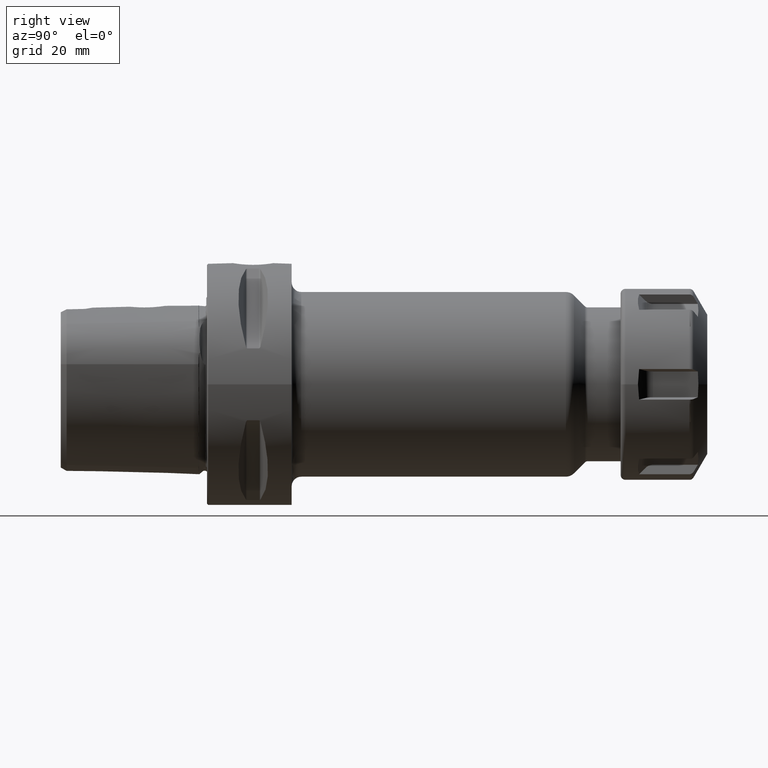
[diagram: clean part render]
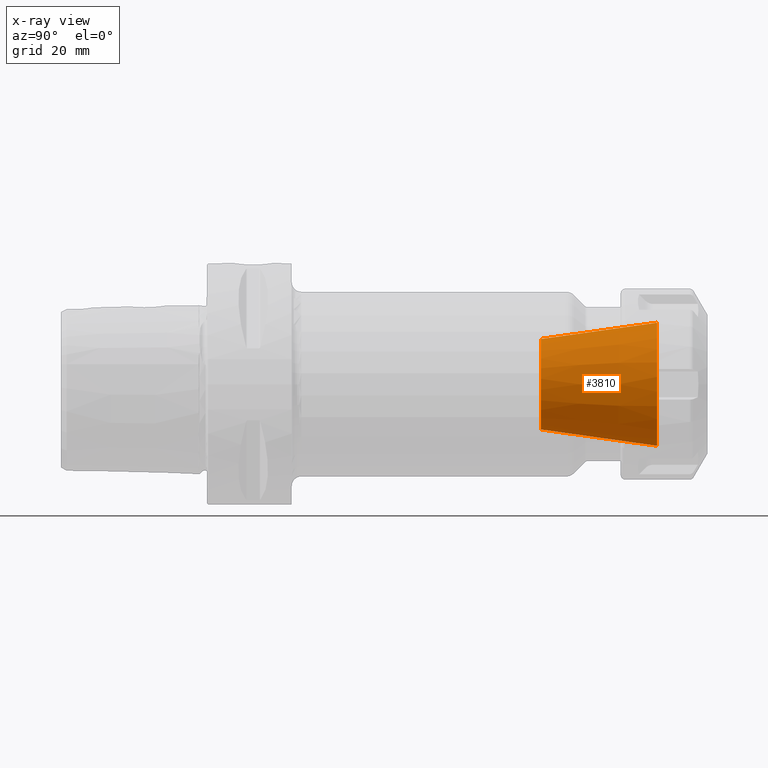
[diagram: x-ray — body ghosted, one internal face saturated and labeled with its STEP entity id]
A machine part, right view, then the same camera in x-ray: the body is ghosted and one INTERNAL B-rep face — a face not visible from any outside direction — is saturated and labeled: STEP entity #3810.
In plain terms, the highlighted conical surface has half-angle 8 deg.
Its self-contained STEP definition (entity closure, byte-faithful):
#1713=CARTESIAN_POINT('',(0.E0,1.17E2,0.E0));
#1714=DIRECTION('',(0.E0,-1.E0,0.E0));
#1715=DIRECTION('',(0.E0,0.E0,-1.E0));
#1716=AXIS2_PLACEMENT_3D('',#1713,#1714,#1715);
#1723=CARTESIAN_POINT('',(0.E0,8.675967867987E1,0.E0));
#1724=DIRECTION('',(0.E0,-1.E0,0.E0));
#1725=DIRECTION('',(0.E0,0.E0,-1.E0));
#1726=AXIS2_PLACEMENT_3D('',#1723,#1724,#1725);
#1728=DIRECTION('',(0.E0,9.902680687416E-1,-1.391731009601E-1));
#1729=VECTOR('',#1728,3.053751027089E1);
#1730=CARTESIAN_POINT('',(0.E0,8.675967867987E1,-1.175E1));
#1731=LINE('',#1730,#1729);
#1737=DIRECTION('',(0.E0,9.902680687416E-1,1.391731009601E-1));
#1738=VECTOR('',#1737,3.053751027089E1);
#1739=CARTESIAN_POINT('',(0.E0,8.675967867987E1,1.175E1));
#1740=LINE('',#1739,#1738);
#2167=CARTESIAN_POINT('',(0.E0,8.675967867987E1,-1.175E1));
#2169=VERTEX_POINT('',#2167);
#2171=CARTESIAN_POINT('',(0.E0,8.675967867987E1,1.175E1));
#2173=VERTEX_POINT('',#2171);
#2174=CARTESIAN_POINT('',(0.E0,1.17E2,-1.6E1));
#2175=CARTESIAN_POINT('',(0.E0,1.17E2,1.6E1));
#2176=VERTEX_POINT('',#2174);
#2177=VERTEX_POINT('',#2175);
#3796=CARTESIAN_POINT('',(0.E0,1.018798393399E2,0.E0));
#3797=DIRECTION('',(0.E0,1.E0,0.E0));
#3798=DIRECTION('',(0.E0,0.E0,-1.E0));
#3799=AXIS2_PLACEMENT_3D('',#3796,#3797,#3798);
#3800=CONICAL_SURFACE('',#3799,1.3875E1,8.E0);
#3801=ORIENTED_EDGE('',*,*,#3789,.T.);
#3803=ORIENTED_EDGE('',*,*,#3802,.F.);
#3805=ORIENTED_EDGE('',*,*,#3804,.F.);
#3807=ORIENTED_EDGE('',*,*,#3806,.T.);
#3808=EDGE_LOOP('',(#3801,#3803,#3805,#3807));
#3809=FACE_OUTER_BOUND('',#3808,.F.);
#3810=ADVANCED_FACE('',(#3809),#3800,.F.);
#1717=CIRCLE('',#1716,1.6E1);
#1727=CIRCLE('',#1726,1.175E1);
#3789=EDGE_CURVE('',#2176,#2177,#1717,.T.);
#3802=EDGE_CURVE('',#2173,#2177,#1740,.T.);
#3804=EDGE_CURVE('',#2169,#2173,#1727,.T.);
#3806=EDGE_CURVE('',#2169,#2176,#1731,.T.);